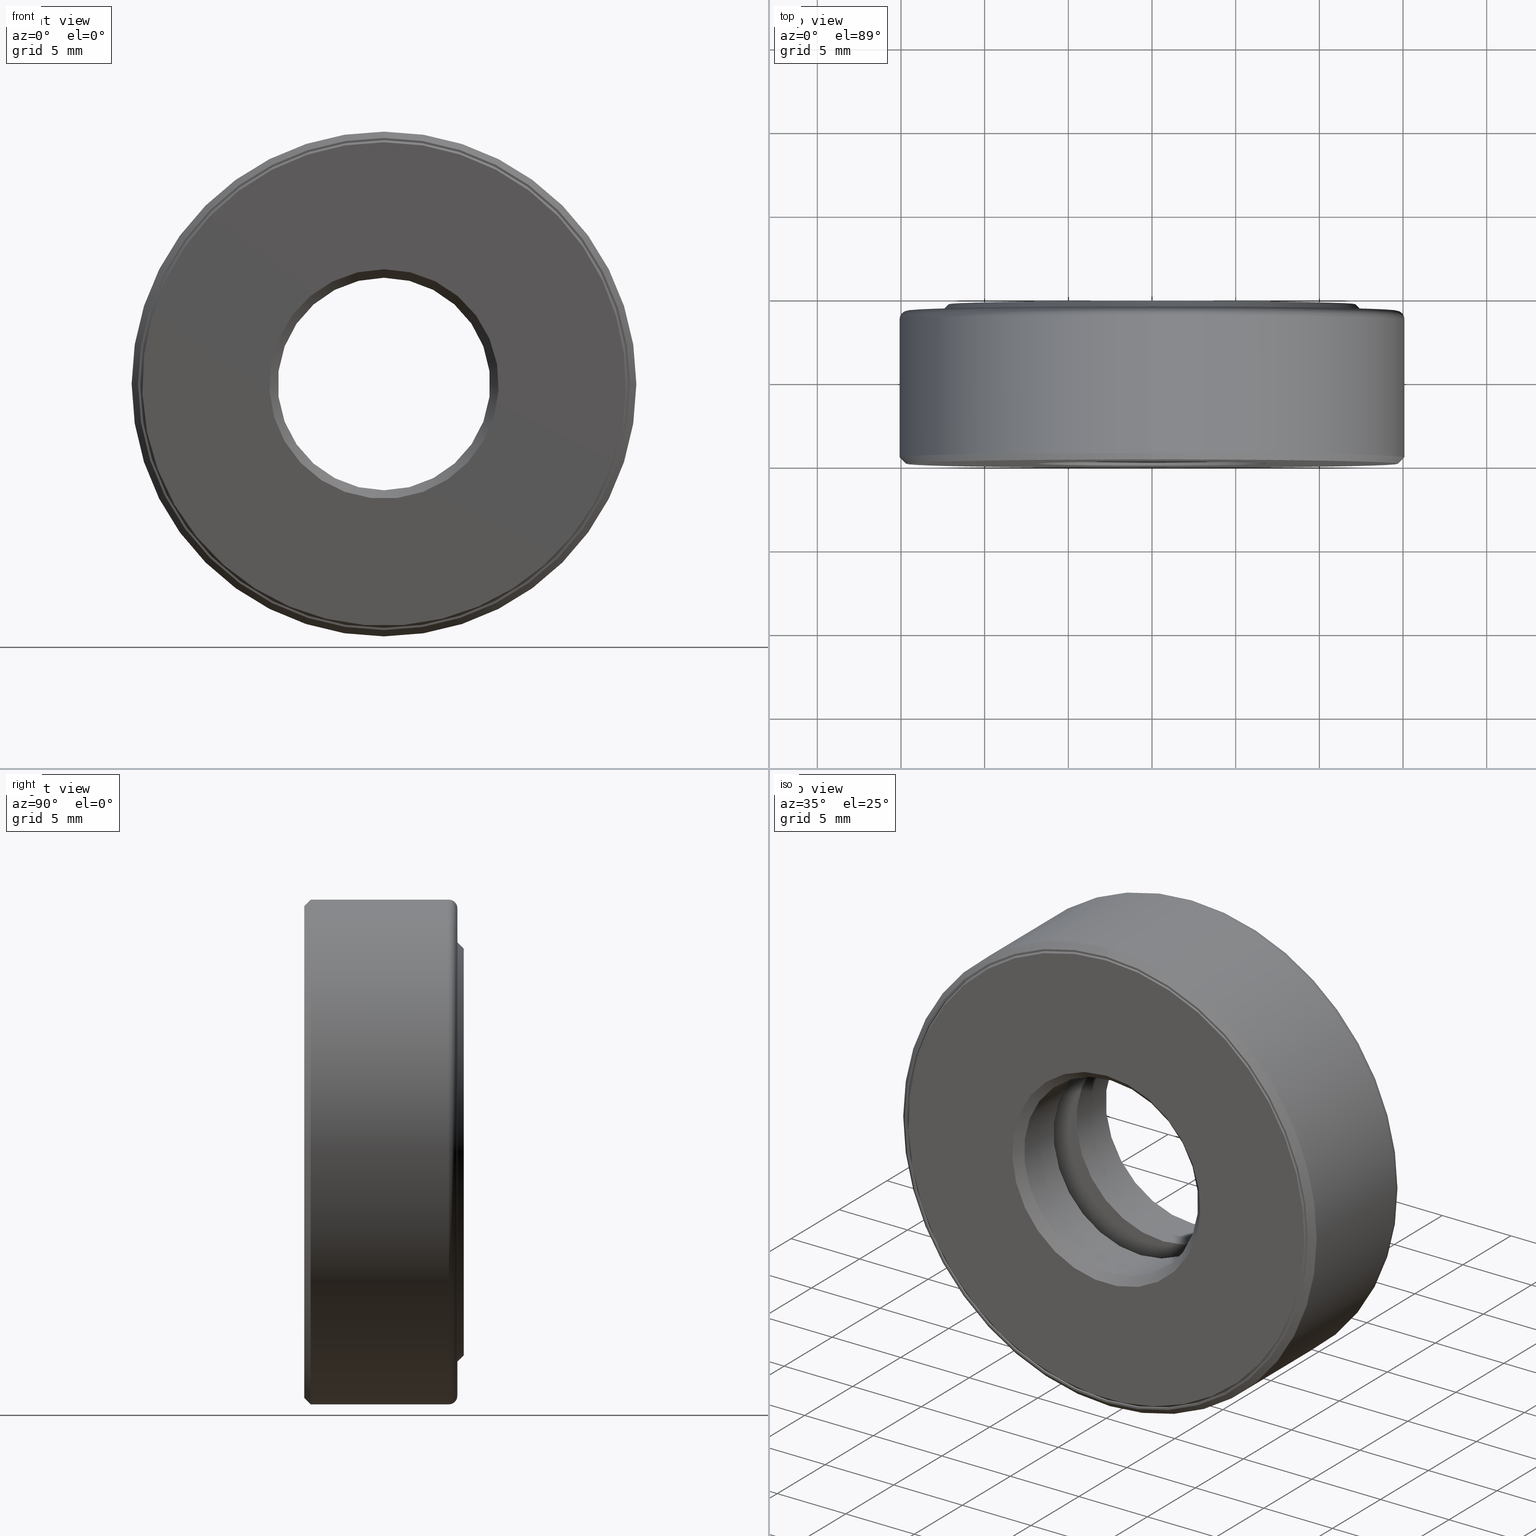
[diagram: canonical four-view strip — front | top / right | iso, engineering-drawing reading convention]
A machine part, canonical four-view strip (front | top / right | iso — engineering-drawing reading convention). The complete STEP part file that produces these views, byte-faithful:
ISO-10303-21;
HEADER;
FILE_DESCRIPTION (( 'STEP AP203' ),
    '1' );
FILE_NAME ('T-100-1-2.step',
    '2016-06-29T18:27:11',
    ( '' ),
    ( '' ),
    'SwSTEP 2.0',
    'SolidWorks 2016',
    '' );
FILE_SCHEMA (( 'CONFIG_CONTROL_DESIGN' ));
ENDSEC;

DATA;
#1 = DIRECTION ( 'NONE',  ( -0.0000000000000000000, 1.000000000000000000, -0.0000000000000000000 ) ) ;
#2 = APPROVAL_STATUS ( 'not_yet_approved' ) ;
#3 = EDGE_CURVE ( 'NONE', #433, #433, #178, .T. ) ;
#4 = ADVANCED_FACE ( 'NONE', ( #115, #412 ), #408, .T. ) ;
#5 = ORIENTED_EDGE ( 'NONE', *, *, #218, .T. ) ;
#6 = DIRECTION ( 'NONE',  ( 0.0000000000000000000, 0.0000000000000000000, 1.000000000000000000 ) ) ;
#7 = DIRECTION ( 'NONE',  ( 0.0000000000000000000, 0.0000000000000000000, 1.000000000000000000 ) ) ;
#8 = FACE_OUTER_BOUND ( 'NONE', #357, .T. ) ;
#9 = ORGANIZATION ( 'UNSPECIFIED', 'UNSPECIFIED', '' ) ;
#10 = EDGE_CURVE ( 'NONE', #118, #118, #107, .T. ) ;
#11 = SPHERICAL_SURFACE ( 'NONE', #293, 0.07812500000000000000 ) ;
#12 = ORIENTED_EDGE ( 'NONE', *, *, #446, .T. ) ;
#13 = PERSON ( 'UNSPECIFIED', 'UNSPECIFIED', 'UNSPECIFIED', ('UNSPECIFIED'), ('UNSPECIFIED'), ('UNSPECIFIED') ) ;
#14 = VERTEX_POINT ( 'NONE', #125 ) ;
#15 = CARTESIAN_POINT ( 'NONE',  ( 0.0000000000000000000, -1.707404996040164500E-017, 0.0000000000000000000 ) ) ;
#16 = EDGE_LOOP ( 'NONE', ( #564 ) ) ;
#17 = CARTESIAN_POINT ( 'NONE',  ( 0.0000000000000000000, 0.02000000000000012900, 0.2500000000000000000 ) ) ;
#18 = EDGE_CURVE ( 'NONE', #428, #428, #479, .T. ) ;
#19 = FACE_OUTER_BOUND ( 'NONE', #266, .T. ) ;
#20 = CARTESIAN_POINT ( 'NONE',  ( 0.0000000000000000000, 0.3549999999999999300, 0.0000000000000000000 ) ) ;
#21 = AXIS2_PLACEMENT_3D ( 'NONE', #193, #465, #334 ) ;
#22 = EDGE_LOOP ( 'NONE', ( #431 ) ) ;
#23 = CARTESIAN_POINT ( 'NONE',  ( 0.0000000000000000000, 0.0000000000000000000, 0.0000000000000000000 ) ) ;
#24 = APPROVAL ( #327, 'UNSPECIFIED' ) ;
#25 = EDGE_LOOP ( 'NONE', ( #54 ) ) ;
#26 = CARTESIAN_POINT ( 'NONE',  ( 0.0000000000000000000, -4.375225302352920700E-017, 0.5687499999999998700 ) ) ;
#27 = DIRECTION ( 'NONE',  ( 0.0000000000000000000, -0.0000000000000000000, -1.000000000000000000 ) ) ;
#28 = CARTESIAN_POINT ( 'NONE',  ( 0.0000000000000000000, 0.3400000000000000800, 0.5937500000000000000 ) ) ;
#29 = PERSON_AND_ORGANIZATION ( #13, #9 ) ;
#30 = PLANE ( 'NONE',  #416 ) ;
#31 = CYLINDRICAL_SURFACE ( 'NONE', #102, 0.5737499999999999800 ) ;
#32 = EDGE_LOOP ( 'NONE', ( #347 ) ) ;
#33 = CARTESIAN_POINT ( 'NONE',  ( 0.0000000000000000000, 0.1874999999999999400, 0.0000000000000000000 ) ) ;
#34 = AXIS2_PLACEMENT_3D ( 'NONE', #59, #103, #375 ) ;
#35 = CIRCLE ( 'NONE', #487, 0.5937500000000000000 ) ;
#36 = AXIS2_PLACEMENT_3D ( 'NONE', #577, #73, #208 ) ;
#37 = VERTEX_POINT ( 'NONE', #405 ) ;
#38 = CC_DESIGN_DATE_AND_TIME_ASSIGNMENT ( #113, #273, ( #497 ) ) ;
#39 = PLANE ( 'NONE',  #190 ) ;
#40 = PERSON_AND_ORGANIZATION_ROLE ( 'design_owner' ) ;
#41 = AXIS2_PLACEMENT_3D ( 'NONE', #23, #361, #532 ) ;
#42 = EDGE_LOOP ( 'NONE', ( #424 ) ) ;
#43 = ORIENTED_EDGE ( 'NONE', *, *, #523, .T. ) ;
#44 = ADVANCED_FACE ( 'NONE', ( #224, #516 ), #149, .F. ) ;
#45 = CARTESIAN_POINT ( 'NONE',  ( 0.0000000000000000000, 0.2343749999999999400, 0.0000000000000000000 ) ) ;
#46 = FACE_OUTER_BOUND ( 'NONE', #455, .T. ) ;
#47 = ADVANCED_FACE ( 'NONE', ( #498, #291 ), #467, .F. ) ;
#48 = CALENDAR_DATE ( 2016, 29, 6 ) ;
#49 = AXIS2_PLACEMENT_3D ( 'NONE', #329, #60, #7 ) ;
#50 = CC_DESIGN_PERSON_AND_ORGANIZATION_ASSIGNMENT ( #310, #555, ( #170 ) ) ;
#51 = DIMENSIONAL_EXPONENTS ( 1.000000000000000000, 0.0000000000000000000, 0.0000000000000000000, 0.0000000000000000000, 0.0000000000000000000, 0.0000000000000000000, 0.0000000000000000000 ) ;
#52 = MECHANICAL_CONTEXT ( 'NONE', #421, 'mechanical' ) ;
#53 = CIRCLE ( 'NONE', #93, 0.5737499999999999800 ) ;
#54 = ORIENTED_EDGE ( 'NONE', *, *, #594, .T. ) ;
#55 = DIRECTION ( 'NONE',  ( 0.0000000000000000000, 0.0000000000000000000, 1.000000000000000000 ) ) ;
#56 = ADVANCED_FACE ( 'NONE', ( ), #11, .T. ) ;
#57 = EDGE_CURVE ( 'NONE', #350, #350, #75, .T. ) ;
#58 = FACE_OUTER_BOUND ( 'NONE', #42, .T. ) ;
#59 = CARTESIAN_POINT ( 'NONE',  ( 1.699042106514539300E-015, 0.1874999999999999400, 0.4866249999999999200 ) ) ;
#60 = DIRECTION ( 'NONE',  ( -0.0000000000000000000, 1.000000000000000000, -0.0000000000000000000 ) ) ;
#61 = EDGE_LOOP ( 'NONE', ( #179 ) ) ;
#62 = ORIENTED_EDGE ( 'NONE', *, *, #561, .T. ) ;
#63 = VERTEX_POINT ( 'NONE', #300 ) ;
#64 = COORDINATED_UNIVERSAL_TIME_OFFSET ( 5, 0, .BEHIND. ) ;
#65 = AXIS2_PLACEMENT_3D ( 'NONE', #393, #404, #463 ) ;
#66 = FACE_BOUND ( 'NONE', #521, .T. ) ;
#67 = EDGE_LOOP ( 'NONE', ( #304 ) ) ;
#68 = AXIS2_PLACEMENT_3D ( 'NONE', #33, #452, #173 ) ;
#69 = DIRECTION ( 'NONE',  ( -0.0000000000000000000, 1.000000000000000000, -0.0000000000000000000 ) ) ;
#70 = DIRECTION ( 'NONE',  ( 0.0000000000000000000, -1.000000000000000000, 0.0000000000000000000 ) ) ;
#71 = FACE_OUTER_BOUND ( 'NONE', #392, .T. ) ;
#72 = FACE_OUTER_BOUND ( 'NONE', #77, .T. ) ;
#73 = DIRECTION ( 'NONE',  ( -0.0000000000000000000, 1.000000000000000000, -0.0000000000000000000 ) ) ;
#74 = PRODUCT_DEFINITION ( 'UNKNOWN', '', #170, #91 ) ;
#75 = CIRCLE ( 'NONE', #504, 0.5667499999999998600 ) ;
#76 = CARTESIAN_POINT ( 'NONE',  ( 0.0000000000000000000, 0.3750000000000000600, 0.4787499999999997900 ) ) ;
#77 = EDGE_LOOP ( 'NONE', ( #89 ) ) ;
#78 = CARTESIAN_POINT ( 'NONE',  ( 0.0000000000000000000, 0.1406250000000000300, 0.5737499999999999800 ) ) ;
#79 = DIRECTION ( 'NONE',  ( -0.0000000000000000000, 1.000000000000000000, -0.0000000000000000000 ) ) ;
#80 = FACE_OUTER_BOUND ( 'NONE', #355, .T. ) ;
#81 = COORDINATED_UNIVERSAL_TIME_OFFSET ( 5, 0, .BEHIND. ) ;
#82 = CARTESIAN_POINT ( 'NONE',  ( 0.0000000000000000000, 0.3599999999999999900, 0.0000000000000000000 ) ) ;
#83 = ORIENTED_EDGE ( 'NONE', *, *, #206, .F. ) ;
#84 = CARTESIAN_POINT ( 'NONE',  ( 0.0000000000000000000, -4.481938114605432000E-017, 0.0000000000000000000 ) ) ;
#85 = CIRCLE ( 'NONE', #568, 0.2500000000000000000 ) ;
#86 = CIRCLE ( 'NONE', #434, 0.5667499999999998600 ) ;
#87 = CARTESIAN_POINT ( 'NONE',  ( -9.750409241346167200E-017, 0.1406250000000000300, 0.0000000000000000000 ) ) ;
#88 = EDGE_LOOP ( 'NONE', ( #120 ) ) ;
#89 = ORIENTED_EDGE ( 'NONE', *, *, #365, .T. ) ;
#90 = DIRECTION ( 'NONE',  ( 0.0000000000000000000, 0.0000000000000000000, 1.000000000000000000 ) ) ;
#91 = DESIGN_CONTEXT ( 'detailed design', #457, 'design' ) ;
#92 = DIRECTION ( 'NONE',  ( -0.0000000000000000000, 1.000000000000000000, -0.0000000000000000000 ) ) ;
#93 = AXIS2_PLACEMENT_3D ( 'NONE', #501, #98, #133 ) ;
#94 = FACE_BOUND ( 'NONE', #605, .T. ) ;
#95 = APPROVAL_ROLE ( '' ) ;
#96 = CC_DESIGN_DATE_AND_TIME_ASSIGNMENT ( #200, #550, ( #74 ) ) ;
#97 = ADVANCED_FACE ( 'NONE', ( #275, #385 ), #579, .T. ) ;
#98 = DIRECTION ( 'NONE',  ( -0.0000000000000000000, 1.000000000000000000, -0.0000000000000000000 ) ) ;
#99 = TOROIDAL_SURFACE ( 'NONE', #68, 0.4866249999999999200, 0.07812500000000000000 ) ;
#100 = CLOSED_SHELL ( 'NONE', ( #377 ) ) ;
#101 = ADVANCED_FACE ( 'NONE', ( #235, #111 ), #30, .F. ) ;
#102 = AXIS2_PLACEMENT_3D ( 'NONE', #444, #79, #129 ) ;
#103 = DIRECTION ( 'NONE',  ( -1.000000000000000000, 0.0000000000000000000, 3.491481338843134500E-015 ) ) ;
#104 = CIRCLE ( 'NONE', #511, 0.5137499999999999300 ) ;
#105 = CIRCLE ( 'NONE', #495, 0.4241249999999998100 ) ;
#106 = DIRECTION ( 'NONE',  ( 0.0000000000000000000, 0.0000000000000000000, 1.000000000000000000 ) ) ;
#107 = CIRCLE ( 'NONE', #388, 0.4787499999999997900 ) ;
#108 = AXIS2_PLACEMENT_3D ( 'NONE', #189, #143, #331 ) ;
#109 = CARTESIAN_POINT ( 'NONE',  ( 0.0000000000000000000, 0.0000000000000000000, 0.0000000000000000000 ) ) ;
#110 = VERTEX_POINT ( 'NONE', #402 ) ;
#111 = FACE_OUTER_BOUND ( 'NONE', #517, .T. ) ;
#112 = EDGE_LOOP ( 'NONE', ( #440 ) ) ;
#113 = DATE_AND_TIME ( #502, #345 ) ;
#114 = CARTESIAN_POINT ( 'NONE',  ( 0.0000000000000000000, -1.707404996040164500E-017, 0.2699999999999999600 ) ) ;
#115 = FACE_BOUND ( 'NONE', #137, .T. ) ;
#116 = CARTESIAN_POINT ( 'NONE',  ( 0.0000000000000000000, 0.3400000000000000800, 0.0000000000000000000 ) ) ;
#117 = CARTESIAN_POINT ( 'NONE',  ( 0.0000000000000000000, 0.1406250000000000300, 0.5491249999999999700 ) ) ;
#118 = VERTEX_POINT ( 'NONE', #76 ) ;
#119 = DIRECTION ( 'NONE',  ( 0.0000000000000000000, 0.0000000000000000000, 1.000000000000000000 ) ) ;
#120 = ORIENTED_EDGE ( 'NONE', *, *, #10, .F. ) ;
#121 = ADVANCED_FACE ( 'NONE', ( #460, #342 ), #153, .T. ) ;
#122 = DIRECTION ( 'NONE',  ( -0.0000000000000000000, 1.000000000000000000, -0.0000000000000000000 ) ) ;
#123 = ORIENTED_EDGE ( 'NONE', *, *, #353, .T. ) ;
#124 = DIRECTION ( 'NONE',  ( 0.0000000000000000000, -1.000000000000000000, 0.0000000000000000000 ) ) ;
#125 = CARTESIAN_POINT ( 'NONE',  ( 0.0000000000000000000, 0.3399999999999999700, 0.5137499999999999300 ) ) ;
#126 = AXIS2_PLACEMENT_3D ( 'NONE', #225, #131, #232 ) ;
#127 = DIRECTION ( 'NONE',  ( -1.000000000000000000, 0.0000000000000000000, 6.982962677686269100E-015 ) ) ;
#128 = ADVANCED_FACE ( 'NONE', ( #406, #295 ), #31, .F. ) ;
#129 = DIRECTION ( 'NONE',  ( 0.0000000000000000000, 0.0000000000000000000, 1.000000000000000000 ) ) ;
#130 = CLOSED_SHELL ( 'NONE', ( #56 ) ) ;
#131 = DIRECTION ( 'NONE',  ( -0.0000000000000000000, 1.000000000000000000, -0.0000000000000000000 ) ) ;
#132 = AXIS2_PLACEMENT_3D ( 'NONE', #163, #354, #587 ) ;
#133 = DIRECTION ( 'NONE',  ( 0.0000000000000000000, 0.0000000000000000000, 1.000000000000000000 ) ) ;
#134 = FACE_OUTER_BOUND ( 'NONE', #484, .T. ) ;
#135 = APPROVAL_DATE_TIME ( #239, #341 ) ;
#136 = APPLICATION_PROTOCOL_DEFINITION ( 'international standard', 'config_control_design', 1994, #457 ) ;
#137 = EDGE_LOOP ( 'NONE', ( #43 ) ) ;
#138 = EDGE_LOOP ( 'NONE', ( #589 ) ) ;
#139 = ADVANCED_FACE ( 'NONE', ( #572, #506 ), #99, .F. ) ;
#140 = MANIFOLD_SOLID_BREP ( 'Revolve2[1]', #164 ) ;
#141 = ADVANCED_FACE ( 'NONE', ( #423, #435 ), #39, .F. ) ;
#142 = CARTESIAN_POINT ( 'NONE',  ( 0.0000000000000000000, -4.375225302352920700E-017, 0.0000000000000000000 ) ) ;
#143 = DIRECTION ( 'NONE',  ( -0.0000000000000000000, 1.000000000000000000, 0.0000000000000000000 ) ) ;
#144 = AXIS2_PLACEMENT_3D ( 'NONE', #562, #246, #505 ) ;
#145 = ORIENTED_EDGE ( 'NONE', *, *, #594, .F. ) ;
#146 = DIRECTION ( 'NONE',  ( -0.0000000000000000000, 1.000000000000000000, -0.0000000000000000000 ) ) ;
#147 = DIRECTION ( 'NONE',  ( 0.0000000000000000000, 0.0000000000000000000, 1.000000000000000000 ) ) ;
#148 = CIRCLE ( 'NONE', #36, 0.2500000000000000600 ) ;
#149 = CONICAL_SURFACE ( 'NONE', #301, 0.2500000000000000000, 0.7853981633974445000 ) ;
#150 = ORIENTED_EDGE ( 'NONE', *, *, #523, .F. ) ;
#151 = PERSON_AND_ORGANIZATION ( #13, #9 ) ;
#152 = PRODUCT ( 'T-100-1-2', 'T-100-1-2', '', ( #52 ) ) ;
#153 = CONICAL_SURFACE ( 'NONE', #537, 0.4787499999999997900, 0.7853981633974498300 ) ;
#154 = EDGE_CURVE ( 'NONE', #199, #199, #311, .T. ) ;
#155 = ORIENTED_EDGE ( 'NONE', *, *, #378, .F. ) ;
#156 = DIRECTION ( 'NONE',  ( 0.0000000000000000000, 0.0000000000000000000, 1.000000000000000000 ) ) ;
#157 = CYLINDRICAL_SURFACE ( 'NONE', #540, 0.5667499999999998600 ) ;
#158 = AXIS2_PLACEMENT_3D ( 'NONE', #318, #280, #462 ) ;
#159 = VERTEX_POINT ( 'NONE', #490 ) ;
#160 = DIRECTION ( 'NONE',  ( 0.0000000000000000000, 0.0000000000000000000, 1.000000000000000000 ) ) ;
#161 = AXIS2_PLACEMENT_3D ( 'NONE', #20, #351, #213 ) ;
#162 = CC_DESIGN_PERSON_AND_ORGANIZATION_ASSIGNMENT ( #360, #326, ( #497 ) ) ;
#163 = CARTESIAN_POINT ( 'NONE',  ( 0.0000000000000000000, 0.0000000000000000000, 0.0000000000000000000 ) ) ;
#164 = CLOSED_SHELL ( 'NONE', ( #139, #212, #586, #237, #330, #101, #510, #459, #97, #425, #128, #420, #141, #44, #557, #552 ) ) ;
#165 = DIRECTION ( 'NONE',  ( 0.0000000000000000000, 0.0000000000000000000, 1.000000000000000000 ) ) ;
#166 = MANIFOLD_SOLID_BREP ( 'BALLS[2]', #130 ) ;
#167 = VERTEX_POINT ( 'NONE', #349 ) ;
#168 = APPROVAL_PERSON_ORGANIZATION ( #272, #24, #95 ) ;
#169 = AXIS2_PLACEMENT_3D ( 'NONE', #556, #283, #468 ) ;
#170 = PRODUCT_DEFINITION_FORMATION_WITH_SPECIFIED_SOURCE ( 'ANY', '', #152, .NOT_KNOWN. ) ;
#171 = CIRCLE ( 'NONE', #315, 0.4241249999999998100 ) ;
#172 = DIRECTION ( 'NONE',  ( 0.0000000000000000000, 0.0000000000000000000, -1.000000000000000000 ) ) ;
#173 = DIRECTION ( 'NONE',  ( 0.0000000000000000000, 0.0000000000000000000, 1.000000000000000000 ) ) ;
#174 = CIRCLE ( 'NONE', #384, 0.2699999999999999600 ) ;
#175 = FACE_OUTER_BOUND ( 'NONE', #461, .T. ) ;
#176 = EDGE_CURVE ( 'NONE', #110, #110, #171, .T. ) ;
#177 = DIRECTION ( 'NONE',  ( 0.0000000000000000000, 0.0000000000000000000, 1.000000000000000000 ) ) ;
#178 = CIRCLE ( 'NONE', #257, 0.5687499999999998700 ) ;
#179 = ORIENTED_EDGE ( 'NONE', *, *, #231, .F. ) ;
#180 = DIRECTION ( 'NONE',  ( 0.0000000000000000000, 0.0000000000000000000, 1.000000000000000000 ) ) ;
#181 = AXIS2_PLACEMENT_3D ( 'NONE', #547, #541, #323 ) ;
#182 = CC_DESIGN_APPROVAL ( #290, ( #74 ) ) ;
#183 = PLANE ( 'NONE',  #520 ) ;
#184 = VERTEX_POINT ( 'NONE', #480 ) ;
#185 = LOCAL_TIME ( 14, 27, 11.00000000000000000, #81 ) ;
#186 = DIRECTION ( 'NONE',  ( -0.0000000000000000000, 1.000000000000000000, -0.0000000000000000000 ) ) ;
#187 = CIRCLE ( 'NONE', #250, 0.5737499999999999800 ) ;
#188 = EDGE_LOOP ( 'NONE', ( #414 ) ) ;
#189 = CARTESIAN_POINT ( 'NONE',  ( 0.0000000000000000000, 0.3750000000000000600, 0.0000000000000000000 ) ) ;
#190 = AXIS2_PLACEMENT_3D ( 'NONE', #409, #368, #545 ) ;
#191 = FACE_OUTER_BOUND ( 'NONE', #25, .T. ) ;
#192 = SPHERICAL_SURFACE ( 'NONE', #181, 0.07812500000000000000 ) ;
#193 = CARTESIAN_POINT ( 'NONE',  ( -3.242505915097589300E-034, -4.483605502296877000E-017, 0.0000000000000000000 ) ) ;
#194 = CARTESIAN_POINT ( 'NONE',  ( 0.0000000000000000000, 0.02000000000000012900, 0.0000000000000000000 ) ) ;
#195 = ORIENTED_EDGE ( 'NONE', *, *, #3, .T. ) ;
#196 = CC_DESIGN_SECURITY_CLASSIFICATION ( #497, ( #170 ) ) ;
#197 = ORIENTED_EDGE ( 'NONE', *, *, #477, .T. ) ;
#198 = EDGE_CURVE ( 'NONE', #63, #63, #187, .T. ) ;
#199 = VERTEX_POINT ( 'NONE', #578 ) ;
#200 = DATE_AND_TIME ( #282, #482 ) ;
#201 = EDGE_LOOP ( 'NONE', ( #604 ) ) ;
#202 = EDGE_LOOP ( 'NONE', ( #499 ) ) ;
#203 = CC_DESIGN_PERSON_AND_ORGANIZATION_ASSIGNMENT ( #151, #603, ( #170 ) ) ;
#204 = CARTESIAN_POINT ( 'NONE',  ( 0.0000000000000000000, 0.3399999999999999700, 0.0000000000000000000 ) ) ;
#205 = CYLINDRICAL_SURFACE ( 'NONE', #567, 0.5937500000000000000 ) ;
#206 = EDGE_CURVE ( 'NONE', #316, #316, #53, .T. ) ;
#207 = ORIENTED_EDGE ( 'NONE', *, *, #245, .T. ) ;
#208 = DIRECTION ( 'NONE',  ( 0.0000000000000000000, 0.0000000000000000000, 1.000000000000000000 ) ) ;
#209 = ORIENTED_EDGE ( 'NONE', *, *, #533, .F. ) ;
#210 = CARTESIAN_POINT ( 'NONE',  ( -2.757832908176868700E-017, 0.1406250000000000800, 0.0000000000000000000 ) ) ;
#211 = FACE_BOUND ( 'NONE', #398, .T. ) ;
#212 = ADVANCED_FACE ( 'NONE', ( #66, #285 ), #183, .F. ) ;
#213 = DIRECTION ( 'NONE',  ( 0.0000000000000000000, 0.0000000000000000000, 1.000000000000000000 ) ) ;
#214 = CARTESIAN_POINT ( 'NONE',  ( 0.0000000000000000000, 0.1406250000000000300, 0.0000000000000000000 ) ) ;
#215 = ORIENTED_EDGE ( 'NONE', *, *, #581, .F. ) ;
#216 = DIRECTION ( 'NONE',  ( -0.0000000000000000000, 1.000000000000000000, -0.0000000000000000000 ) ) ;
#217 = ORIENTED_EDGE ( 'NONE', *, *, #397, .F. ) ;
#218 = EDGE_CURVE ( 'NONE', #443, #443, #553, .T. ) ;
#219 = CARTESIAN_POINT ( 'NONE',  ( 0.4866249999999999200, 0.1874999999999999400, -3.398084213029078600E-015 ) ) ;
#220 = CYLINDRICAL_SURFACE ( 'NONE', #132, 0.2500000000000000000 ) ;
#221 = FACE_OUTER_BOUND ( 'NONE', #201, .T. ) ;
#222 = DIRECTION ( 'NONE',  ( 0.0000000000000000000, 0.0000000000000000000, 1.000000000000000000 ) ) ;
#223 = MANIFOLD_SOLID_BREP ( 'Revolve3', #100 ) ;
#224 = FACE_OUTER_BOUND ( 'NONE', #22, .T. ) ;
#225 = CARTESIAN_POINT ( 'NONE',  ( 0.0000000000000000000, 0.004999999999999972300, 0.0000000000000000000 ) ) ;
#226 = PRODUCT_RELATED_PRODUCT_CATEGORY ( 'detail', '', ( #152 ) ) ;
#227 = PLANE ( 'NONE',  #470 ) ;
#228 = CIRCLE ( 'NONE', #528, 0.5737499999999999800 ) ;
#229 = APPROVAL_STATUS ( 'not_yet_approved' ) ;
#230 = CALENDAR_DATE ( 2016, 29, 6 ) ;
#231 = EDGE_CURVE ( 'NONE', #184, #184, #560, .T. ) ;
#232 = DIRECTION ( 'NONE',  ( 0.0000000000000000000, 0.0000000000000000000, 1.000000000000000000 ) ) ;
#233 = ADVANCED_FACE ( 'NONE', ( #221, #451 ), #299, .F. ) ;
#234 = CARTESIAN_POINT ( 'NONE',  ( 0.0000000000000000000, 0.3399999999999999700, 0.0000000000000000000 ) ) ;
#235 = FACE_BOUND ( 'NONE', #260, .T. ) ;
#236 = ORIENTED_EDGE ( 'NONE', *, *, #514, .T. ) ;
#237 = ADVANCED_FACE ( 'NONE', ( #438, #317 ), #227, .F. ) ;
#238 =( NAMED_UNIT ( * ) SI_UNIT ( $, .STERADIAN. ) SOLID_ANGLE_UNIT ( ) );
#239 = DATE_AND_TIME ( #230, #256 ) ;
#240 = DIRECTION ( 'NONE',  ( 0.0000000000000000000, 0.0000000000000000000, 1.000000000000000000 ) ) ;
#241 = ADVANCED_FACE ( 'NONE', ( ), #192, .T. ) ;
#242 =( GEOMETRIC_REPRESENTATION_CONTEXT ( 3 ) GLOBAL_UNCERTAINTY_ASSIGNED_CONTEXT ( ( #418 ) ) GLOBAL_UNIT_ASSIGNED_CONTEXT ( ( #542, #374, #238 ) ) REPRESENTATION_CONTEXT ( 'NONE', 'WORKASPACE' ) );
#243 = EDGE_LOOP ( 'NONE', ( #591 ) ) ;
#244 = CARTESIAN_POINT ( 'NONE',  ( 0.0000000000000000000, 0.3599999999999999900, 0.0000000000000000000 ) ) ;
#245 = EDGE_CURVE ( 'NONE', #471, #471, #105, .T. ) ;
#246 = DIRECTION ( 'NONE',  ( -0.0000000000000000000, 1.000000000000000000, -0.0000000000000000000 ) ) ;
#247 = FACE_OUTER_BOUND ( 'NONE', #475, .T. ) ;
#248 = ORIENTED_EDGE ( 'NONE', *, *, #18, .F. ) ;
#249 = EDGE_LOOP ( 'NONE', ( #209 ) ) ;
#250 = AXIS2_PLACEMENT_3D ( 'NONE', #234, #269, #180 ) ;
#251 = CARTESIAN_POINT ( 'NONE',  ( 0.0000000000000000000, -4.481938114605432000E-017, 0.5787499999999999900 ) ) ;
#252 = CLOSED_SHELL ( 'NONE', ( #606, #233, #4, #47, #598, #503, #121, #469 ) ) ;
#253 = CARTESIAN_POINT ( 'NONE',  ( 0.0000000000000000000, 0.3750000000000000600, 0.0000000000000000000 ) ) ;
#254 = DIRECTION ( 'NONE',  ( -0.0000000000000000000, 1.000000000000000000, -0.0000000000000000000 ) ) ;
#255 = CIRCLE ( 'NONE', #601, 0.2700000000000000200 ) ;
#256 = LOCAL_TIME ( 14, 27, 11.00000000000000000, #389 ) ;
#257 = AXIS2_PLACEMENT_3D ( 'NONE', #358, #216, #530 ) ;
#258 = ORIENTED_EDGE ( 'NONE', *, *, #574, .F. ) ;
#259 = CARTESIAN_POINT ( 'NONE',  ( 0.0000000000000000000, 0.2343749999999999400, 0.5491249999999999700 ) ) ;
#260 = EDGE_LOOP ( 'NONE', ( #474 ) ) ;
#261 = CARTESIAN_POINT ( 'NONE',  ( 0.0000000000000000000, 0.2343749999999999400, 0.2500000000000000000 ) ) ;
#262 = DIRECTION ( 'NONE',  ( 0.0000000000000000000, 0.0000000000000000000, -1.000000000000000000 ) ) ;
#263 = CARTESIAN_POINT ( 'NONE',  ( 0.0000000000000000000, 0.02000000000000012900, 0.0000000000000000000 ) ) ;
#264 = DIRECTION ( 'NONE',  ( -0.0000000000000000000, 1.000000000000000000, -0.0000000000000000000 ) ) ;
#265 = AXIS2_PLACEMENT_3D ( 'NONE', #454, #92, #274 ) ;
#266 = EDGE_LOOP ( 'NONE', ( #145 ) ) ;
#267 = AXIS2_PLACEMENT_3D ( 'NONE', #558, #380, #288 ) ;
#268 = AXIS2_PLACEMENT_3D ( 'NONE', #442, #346, #580 ) ;
#269 = DIRECTION ( 'NONE',  ( -0.0000000000000000000, 1.000000000000000000, -0.0000000000000000000 ) ) ;
#270 = DIRECTION ( 'NONE',  ( 0.0000000000000000000, -0.0000000000000000000, -1.000000000000000000 ) ) ;
#271 = FACE_OUTER_BOUND ( 'NONE', #112, .T. ) ;
#272 = PERSON_AND_ORGANIZATION ( #13, #9 ) ;
#273 = DATE_TIME_ROLE ( 'classification_date' ) ;
#274 = DIRECTION ( 'NONE',  ( 0.0000000000000000000, 0.0000000000000000000, 1.000000000000000000 ) ) ;
#275 = FACE_OUTER_BOUND ( 'NONE', #61, .T. ) ;
#276 = EDGE_LOOP ( 'NONE', ( #150 ) ) ;
#277 = DIRECTION ( 'NONE',  ( -0.0000000000000000000, 1.000000000000000000, 0.0000000000000000000 ) ) ;
#278 = MANIFOLD_SOLID_BREP ( 'BALLS[1]', #485 ) ;
#279 = AXIS2_PLACEMENT_3D ( 'NONE', #595, #322, #415 ) ;
#280 = DIRECTION ( 'NONE',  ( -0.0000000000000000000, 1.000000000000000000, -0.0000000000000000000 ) ) ;
#281 = VERTEX_POINT ( 'NONE', #261 ) ;
#282 = CALENDAR_DATE ( 2016, 29, 6 ) ;
#283 = DIRECTION ( 'NONE',  ( -0.0000000000000000000, 1.000000000000000000, -0.0000000000000000000 ) ) ;
#284 = SECURITY_CLASSIFICATION_LEVEL ( 'unclassified' ) ;
#285 = FACE_OUTER_BOUND ( 'NONE', #243, .T. ) ;
#286 = EDGE_LOOP ( 'NONE', ( #195 ) ) ;
#287 = DIRECTION ( 'NONE',  ( 0.0000000000000000000, 0.0000000000000000000, 1.000000000000000000 ) ) ;
#288 = DIRECTION ( 'NONE',  ( 1.000000000000000000, 0.0000000000000000000, 0.0000000000000000000 ) ) ;
#289 = FACE_OUTER_BOUND ( 'NONE', #138, .T. ) ;
#290 = APPROVAL ( #229, 'UNSPECIFIED' ) ;
#291 = FACE_OUTER_BOUND ( 'NONE', #276, .T. ) ;
#292 = EDGE_LOOP ( 'NONE', ( #554 ) ) ;
#293 = AXIS2_PLACEMENT_3D ( 'NONE', #219, #314, #127 ) ;
#294 = COORDINATED_UNIVERSAL_TIME_OFFSET ( 5, 0, .BEHIND. ) ;
#295 = FACE_OUTER_BOUND ( 'NONE', #188, .T. ) ;
#296 = CLOSED_SHELL ( 'NONE', ( #241 ) ) ;
#297 = CC_DESIGN_APPROVAL ( #24, ( #170 ) ) ;
#298 = VERTEX_POINT ( 'NONE', #114 ) ;
#299 = TOROIDAL_SURFACE ( 'NONE', #158, 0.4866249999999999200, 0.07812500000000006900 ) ;
#300 = CARTESIAN_POINT ( 'NONE',  ( 0.0000000000000000000, 0.3399999999999999700, 0.5737499999999999800 ) ) ;
#301 = AXIS2_PLACEMENT_3D ( 'NONE', #263, #124, #262 ) ;
#302 = CARTESIAN_POINT ( 'NONE',  ( 0.0000000000000000000, 0.1406250000000000600, 0.4241249999999998100 ) ) ;
#303 = EDGE_LOOP ( 'NONE', ( #62 ) ) ;
#304 = ORIENTED_EDGE ( 'NONE', *, *, #154, .F. ) ;
#305 = PLANE ( 'NONE',  #268 ) ;
#306 = DIRECTION ( 'NONE',  ( -0.0000000000000000000, 1.000000000000000000, -0.0000000000000000000 ) ) ;
#307 = DIRECTION ( 'NONE',  ( -0.0000000000000000000, 1.000000000000000000, -0.0000000000000000000 ) ) ;
#308 = VERTEX_POINT ( 'NONE', #399 ) ;
#309 = DIRECTION ( 'NONE',  ( 0.0000000000000000000, 0.0000000000000000000, 1.000000000000000000 ) ) ;
#310 = PERSON_AND_ORGANIZATION ( #13, #9 ) ;
#311 = CIRCLE ( 'NONE', #126, 0.5737499999999999800 ) ;
#312 = CARTESIAN_POINT ( 'NONE',  ( 0.0000000000000000000, 0.3549999999999999300, 0.2500000000000000600 ) ) ;
#313 = ORIENTED_EDGE ( 'NONE', *, *, #176, .F. ) ;
#314 = DIRECTION ( 'NONE',  ( 6.982962677686269100E-015, -0.0000000000000000000, 1.000000000000000000 ) ) ;
#315 = AXIS2_PLACEMENT_3D ( 'NONE', #45, #492, #90 ) ;
#316 = VERTEX_POINT ( 'NONE', #525 ) ;
#317 = FACE_BOUND ( 'NONE', #526, .T. ) ;
#318 = CARTESIAN_POINT ( 'NONE',  ( 0.0000000000000000000, 0.1874999999999999400, 0.0000000000000000000 ) ) ;
#319 = ORIENTED_EDGE ( 'NONE', *, *, #574, .T. ) ;
#320 = ORIENTED_EDGE ( 'NONE', *, *, #3, .F. ) ;
#321 = AXIS2_PLACEMENT_3D ( 'NONE', #508, #513, #240 ) ;
#322 = DIRECTION ( 'NONE',  ( -0.0000000000000000000, 1.000000000000000000, -0.0000000000000000000 ) ) ;
#323 = DIRECTION ( 'NONE',  ( 1.047444401652940000E-014, 0.0000000000000000000, 1.000000000000000000 ) ) ;
#324 = TOROIDAL_SURFACE ( 'NONE', #321, 0.5737499999999999800, 0.01999999999999999000 ) ;
#325 = DATE_AND_TIME ( #519, #445 ) ;
#326 = PERSON_AND_ORGANIZATION_ROLE ( 'classification_officer' ) ;
#327 = APPROVAL_STATUS ( 'not_yet_approved' ) ;
#328 = EDGE_LOOP ( 'NONE', ( #5 ) ) ;
#329 = CARTESIAN_POINT ( 'NONE',  ( 0.0000000000000000000, 0.3599999999999999900, 0.0000000000000000000 ) ) ;
#330 = ADVANCED_FACE ( 'NONE', ( #175, #72 ), #333, .F. ) ;
#331 = DIRECTION ( 'NONE',  ( 0.0000000000000000000, 0.0000000000000000000, 1.000000000000000000 ) ) ;
#332 = VERTEX_POINT ( 'NONE', #17 ) ;
#333 = CYLINDRICAL_SURFACE ( 'NONE', #279, 0.5137499999999999300 ) ;
#334 = DIRECTION ( 'NONE',  ( 0.0000000000000000000, 0.0000000000000000000, 1.000000000000000000 ) ) ;
#335 = DIRECTION ( 'NONE',  ( -0.0000000000000000000, 1.000000000000000000, -0.0000000000000000000 ) ) ;
#336 = EDGE_LOOP ( 'NONE', ( #573 ) ) ;
#337 = AXIS2_PLACEMENT_3D ( 'NONE', #84, #264, #309 ) ;
#338 = CONICAL_SURFACE ( 'NONE', #590, 0.5687499999999998700, 0.7853981633974549400 ) ;
#339 = VERTEX_POINT ( 'NONE', #28 ) ;
#340 = PLANE ( 'NONE',  #403 ) ;
#341 = APPROVAL ( #2, 'UNSPECIFIED' ) ;
#342 = FACE_BOUND ( 'NONE', #88, .T. ) ;
#343 = ORIENTED_EDGE ( 'NONE', *, *, #57, .T. ) ;
#344 = SHAPE_DEFINITION_REPRESENTATION ( #563, #476 ) ;
#345 = LOCAL_TIME ( 14, 27, 11.00000000000000000, #294 ) ;
#346 = DIRECTION ( 'NONE',  ( 0.0000000000000000000, -1.000000000000000000, 0.0000000000000000000 ) ) ;
#347 = ORIENTED_EDGE ( 'NONE', *, *, #378, .T. ) ;
#348 = DIRECTION ( 'NONE',  ( 0.0000000000000000000, 0.0000000000000000000, 1.000000000000000000 ) ) ;
#349 = CARTESIAN_POINT ( 'NONE',  ( 0.0000000000000000000, 0.3599999999999999900, 0.5137499999999999300 ) ) ;
#350 = VERTEX_POINT ( 'NONE', #478 ) ;
#351 = DIRECTION ( 'NONE',  ( -0.0000000000000000000, 1.000000000000000000, -0.0000000000000000000 ) ) ;
#352 = CARTESIAN_POINT ( 'NONE',  ( 0.0000000000000000000, 0.3750000000000000600, 0.0000000000000000000 ) ) ;
#353 = EDGE_CURVE ( 'NONE', #534, #534, #429, .T. ) ;
#354 = DIRECTION ( 'NONE',  ( -0.0000000000000000000, 1.000000000000000000, -0.0000000000000000000 ) ) ;
#355 = EDGE_LOOP ( 'NONE', ( #432 ) ) ;
#356 = DIRECTION ( 'NONE',  ( -0.0000000000000000000, 1.000000000000000000, -0.0000000000000000000 ) ) ;
#357 = EDGE_LOOP ( 'NONE', ( #155 ) ) ;
#358 = CARTESIAN_POINT ( 'NONE',  ( 0.0000000000000000000, -4.375225302352920700E-017, 0.0000000000000000000 ) ) ;
#359 = DIRECTION ( 'NONE',  ( 0.0000000000000000000, 0.0000000000000000000, 1.000000000000000000 ) ) ;
#360 = PERSON_AND_ORGANIZATION ( #13, #9 ) ;
#361 = DIRECTION ( 'NONE',  ( -0.0000000000000000000, 1.000000000000000000, -0.0000000000000000000 ) ) ;
#362 = ORIENTED_EDGE ( 'NONE', *, *, #245, .F. ) ;
#363 = CC_DESIGN_PERSON_AND_ORGANIZATION_ASSIGNMENT ( #472, #40, ( #152 ) ) ;
#364 = DIRECTION ( 'NONE',  ( -0.0000000000000000000, 1.000000000000000000, -0.0000000000000000000 ) ) ;
#365 = EDGE_CURVE ( 'NONE', #167, #167, #576, .T. ) ;
#366 = DIRECTION ( 'NONE',  ( 0.0000000000000000000, -1.000000000000000000, 0.0000000000000000000 ) ) ;
#367 = FACE_BOUND ( 'NONE', #249, .T. ) ;
#368 = DIRECTION ( 'NONE',  ( -0.0000000000000000000, 1.000000000000000000, 0.0000000000000000000 ) ) ;
#369 = APPROVAL_ROLE ( '' ) ;
#370 = CARTESIAN_POINT ( 'NONE',  ( 0.0000000000000000000, 0.1406250000000000600, 0.0000000000000000000 ) ) ;
#371 = EDGE_LOOP ( 'NONE', ( #123 ) ) ;
#372 = AXIS2_PLACEMENT_3D ( 'NONE', #394, #522, #348 ) ;
#373 = CC_DESIGN_PERSON_AND_ORGANIZATION_ASSIGNMENT ( #535, #546, ( #74 ) ) ;
#374 =( NAMED_UNIT ( * ) PLANE_ANGLE_UNIT ( ) SI_UNIT ( $, .RADIAN. ) );
#375 = DIRECTION ( 'NONE',  ( -3.491481338843134500E-015, 0.0000000000000000000, -1.000000000000000000 ) ) ;
#376 = APPROVAL_ROLE ( '' ) ;
#377 = ADVANCED_FACE ( 'NONE', ( ), #481, .T. ) ;
#378 = EDGE_CURVE ( 'NONE', #308, #308, #86, .T. ) ;
#379 = EDGE_LOOP ( 'NONE', ( #197 ) ) ;
#380 = DIRECTION ( 'NONE',  ( 0.0000000000000000000, 0.0000000000000000000, -1.000000000000000000 ) ) ;
#381 = CIRCLE ( 'NONE', #413, 0.2500000000000000000 ) ;
#382 = CARTESIAN_POINT ( 'NONE',  ( 0.0000000000000000000, 0.2343749999999999400, 0.0000000000000000000 ) ) ;
#383 = APPROVAL_DATE_TIME ( #549, #24 ) ;
#384 = AXIS2_PLACEMENT_3D ( 'NONE', #15, #69, #390 ) ;
#385 = FACE_BOUND ( 'NONE', #328, .T. ) ;
#386 = AXIS2_PLACEMENT_3D ( 'NONE', #214, #588, #536 ) ;
#387 = ORIENTED_EDGE ( 'NONE', *, *, #477, .F. ) ;
#388 = AXIS2_PLACEMENT_3D ( 'NONE', #447, #356, #359 ) ;
#389 = COORDINATED_UNIVERSAL_TIME_OFFSET ( 5, 0, .BEHIND. ) ;
#390 = DIRECTION ( 'NONE',  ( 0.0000000000000000000, 0.0000000000000000000, 1.000000000000000000 ) ) ;
#391 = MANIFOLD_SOLID_BREP ( 'Revolve2[2]', #252 ) ;
#392 = EDGE_LOOP ( 'NONE', ( #217 ) ) ;
#393 = CARTESIAN_POINT ( 'NONE',  ( 0.0000000000000000000, 0.0000000000000000000, 0.0000000000000000000 ) ) ;
#394 = CARTESIAN_POINT ( 'NONE',  ( 0.0000000000000000000, 0.0000000000000000000, 0.0000000000000000000 ) ) ;
#395 = FACE_OUTER_BOUND ( 'NONE', #448, .T. ) ;
#396 = LENGTH_MEASURE_WITH_UNIT ( LENGTH_MEASURE( 0.02539999999999999900 ), #500 );
#397 = EDGE_CURVE ( 'NONE', #518, #518, #228, .T. ) ;
#398 = EDGE_LOOP ( 'NONE', ( #215 ) ) ;
#399 = CARTESIAN_POINT ( 'NONE',  ( 0.0000000000000000000, 0.2343749999999999400, 0.5667499999999998600 ) ) ;
#400 = EDGE_LOOP ( 'NONE', ( #320 ) ) ;
#401 = CARTESIAN_POINT ( 'NONE',  ( 0.0000000000000000000, 0.2870000000000002000, 0.0000000000000000000 ) ) ;
#402 = CARTESIAN_POINT ( 'NONE',  ( 0.0000000000000000000, 0.2343749999999999400, 0.4241249999999998100 ) ) ;
#403 = AXIS2_PLACEMENT_3D ( 'NONE', #210, #70, #483 ) ;
#404 = DIRECTION ( 'NONE',  ( 0.0000000000000000000, 0.0000000000000000000, 1.000000000000000000 ) ) ;
#405 = CARTESIAN_POINT ( 'NONE',  ( 0.0000000000000000000, 0.1406250000000000800, 0.2500000000000000000 ) ) ;
#406 = FACE_OUTER_BOUND ( 'NONE', #529, .T. ) ;
#407 = ORIENTED_EDGE ( 'NONE', *, *, #231, .T. ) ;
#408 = PLANE ( 'NONE',  #473 ) ;
#409 = CARTESIAN_POINT ( 'NONE',  ( -5.790936198471920900E-033, -3.041315149196542300E-017, 0.0000000000000000000 ) ) ;
#410 = FACE_BOUND ( 'NONE', #286, .T. ) ;
#411 = APPLICATION_PROTOCOL_DEFINITION ( 'international standard', 'config_control_design', 1994, #421 ) ;
#412 = FACE_OUTER_BOUND ( 'NONE', #543, .T. ) ;
#413 = AXIS2_PLACEMENT_3D ( 'NONE', #571, #515, #156 ) ;
#414 = ORIENTED_EDGE ( 'NONE', *, *, #154, .T. ) ;
#415 = DIRECTION ( 'NONE',  ( 0.0000000000000000000, 0.0000000000000000000, 1.000000000000000000 ) ) ;
#416 = AXIS2_PLACEMENT_3D ( 'NONE', #82, #486, #592 ) ;
#417 = FACE_OUTER_BOUND ( 'NONE', #303, .T. ) ;
#418 = UNCERTAINTY_MEASURE_WITH_UNIT (LENGTH_MEASURE( 1.000000000000000100E-005 ), #542, 'distance_accuracy_value', 'NONE');
#419 = CARTESIAN_POINT ( 'NONE',  ( 0.0000000000000000000, -4.481938114605432000E-017, 0.0000000000000000000 ) ) ;
#420 = ADVANCED_FACE ( 'NONE', ( #569, #410 ), #338, .T. ) ;
#421 = APPLICATION_CONTEXT ( 'configuration controlled 3d designs of mechanical parts and assemblies' ) ;
#422 = PLANE ( 'NONE',  #108 ) ;
#423 = FACE_OUTER_BOUND ( 'NONE', #400, .T. ) ;
#424 = ORIENTED_EDGE ( 'NONE', *, *, #581, .T. ) ;
#425 = ADVANCED_FACE ( 'NONE', ( #289, #512 ), #509, .F. ) ;
#426 = CARTESIAN_POINT ( 'NONE',  ( 0.0000000000000000000, 0.0000000000000000000, 0.0000000000000000000 ) ) ;
#427 = AXIS2_PLACEMENT_3D ( 'NONE', #194, #565, #106 ) ;
#428 = VERTEX_POINT ( 'NONE', #78 ) ;
#429 = CIRCLE ( 'NONE', #144, 0.5491249999999999700 ) ;
#430 = DIRECTION ( 'NONE',  ( 0.0000000000000000000, 0.0000000000000000000, 1.000000000000000000 ) ) ;
#431 = ORIENTED_EDGE ( 'NONE', *, *, #514, .F. ) ;
#432 = ORIENTED_EDGE ( 'NONE', *, *, #10, .T. ) ;
#433 = VERTEX_POINT ( 'NONE', #26 ) ;
#434 = AXIS2_PLACEMENT_3D ( 'NONE', #382, #146, #430 ) ;
#435 = FACE_BOUND ( 'NONE', #596, .T. ) ;
#436 = EDGE_LOOP ( 'NONE', ( #491 ) ) ;
#437 = CONICAL_SURFACE ( 'NONE', #161, 0.2500000000000000600, 0.7853981633974449500 ) ;
#438 = FACE_OUTER_BOUND ( 'NONE', #202, .T. ) ;
#439 = CARTESIAN_POINT ( 'NONE',  ( 0.0000000000000000000, 0.1406250000000000800, 0.0000000000000000000 ) ) ;
#440 = ORIENTED_EDGE ( 'NONE', *, *, #198, .T. ) ;
#441 = ORIENTED_EDGE ( 'NONE', *, *, #353, .F. ) ;
#442 = CARTESIAN_POINT ( 'NONE',  ( 0.0000000000000000000, 0.2343749999999999400, 0.0000000000000000000 ) ) ;
#443 = VERTEX_POINT ( 'NONE', #251 ) ;
#444 = CARTESIAN_POINT ( 'NONE',  ( 0.0000000000000000000, 0.0000000000000000000, 0.0000000000000000000 ) ) ;
#445 = LOCAL_TIME ( 14, 27, 11.00000000000000000, #458 ) ;
#446 = EDGE_CURVE ( 'NONE', #575, #575, #493, .T. ) ;
#447 = CARTESIAN_POINT ( 'NONE',  ( 0.0000000000000000000, 0.3750000000000000600, 0.0000000000000000000 ) ) ;
#448 = EDGE_LOOP ( 'NONE', ( #407 ) ) ;
#449 = EDGE_LOOP ( 'NONE', ( #343 ) ) ;
#450 = CARTESIAN_POINT ( 'NONE',  ( 0.0000000000000000000, 0.2343749999999999400, 0.0000000000000000000 ) ) ;
#451 = FACE_OUTER_BOUND ( 'NONE', #336, .T. ) ;
#452 = DIRECTION ( 'NONE',  ( -0.0000000000000000000, 1.000000000000000000, -0.0000000000000000000 ) ) ;
#453 = CC_DESIGN_APPROVAL ( #341, ( #497 ) ) ;
#454 = CARTESIAN_POINT ( 'NONE',  ( 0.0000000000000000000, 0.01499999999999997700, 0.0000000000000000000 ) ) ;
#455 = EDGE_LOOP ( 'NONE', ( #207 ) ) ;
#456 = DIRECTION ( 'NONE',  ( 0.0000000000000000000, 0.0000000000000000000, 1.000000000000000000 ) ) ;
#457 = APPLICATION_CONTEXT ( 'configuration controlled 3d designs of mechanical parts and assemblies' ) ;
#458 = COORDINATED_UNIVERSAL_TIME_OFFSET ( 5, 0, .BEHIND. ) ;
#459 = ADVANCED_FACE ( 'NONE', ( #19, #395 ), #205, .T. ) ;
#460 = FACE_OUTER_BOUND ( 'NONE', #449, .T. ) ;
#461 = EDGE_LOOP ( 'NONE', ( #258 ) ) ;
#462 = DIRECTION ( 'NONE',  ( 0.0000000000000000000, 0.0000000000000000000, 1.000000000000000000 ) ) ;
#463 = DIRECTION ( 'NONE',  ( 1.000000000000000000, 0.0000000000000000000, 0.0000000000000000000 ) ) ;
#464 = AXIS2_PLACEMENT_3D ( 'NONE', #419, #597, #177 ) ;
#465 = DIRECTION ( 'NONE',  ( -0.0000000000000000000, 1.000000000000000000, 0.0000000000000000000 ) ) ;
#466 = VERTEX_POINT ( 'NONE', #312 ) ;
#467 = CYLINDRICAL_SURFACE ( 'NONE', #41, 0.2500000000000000000 ) ;
#468 = DIRECTION ( 'NONE',  ( 0.0000000000000000000, 0.0000000000000000000, 1.000000000000000000 ) ) ;
#469 = ADVANCED_FACE ( 'NONE', ( #539, #524 ), #157, .T. ) ;
#470 = AXIS2_PLACEMENT_3D ( 'NONE', #599, #277, #222 ) ;
#471 = VERTEX_POINT ( 'NONE', #302 ) ;
#472 = PERSON_AND_ORGANIZATION ( #13, #9 ) ;
#473 = AXIS2_PLACEMENT_3D ( 'NONE', #450, #584, #27 ) ;
#474 = ORIENTED_EDGE ( 'NONE', *, *, #365, .F. ) ;
#475 = EDGE_LOOP ( 'NONE', ( #387 ) ) ;
#476 = ADVANCED_BREP_SHAPE_REPRESENTATION ( 'T-100-1-2', ( #140, #391, #223, #278, #166, #602, #65 ), #242 ) ;
#477 = EDGE_CURVE ( 'NONE', #332, #332, #583, .T. ) ;
#478 = CARTESIAN_POINT ( 'NONE',  ( 0.0000000000000000000, 0.2870000000000002000, 0.5667499999999998600 ) ) ;
#479 = CIRCLE ( 'NONE', #386, 0.5737499999999999800 ) ;
#480 = CARTESIAN_POINT ( 'NONE',  ( 0.0000000000000000000, 0.01499999999999997700, 0.5937499999999998900 ) ) ;
#481 = SPHERICAL_SURFACE ( 'NONE', #267, 0.07812500000000000000 ) ;
#482 = LOCAL_TIME ( 14, 27, 11.00000000000000000, #64 ) ;
#483 = DIRECTION ( 'NONE',  ( 0.0000000000000000000, -0.0000000000000000000, -1.000000000000000000 ) ) ;
#484 = EDGE_LOOP ( 'NONE', ( #248 ) ) ;
#485 = CLOSED_SHELL ( 'NONE', ( #496 ) ) ;
#486 = DIRECTION ( 'NONE',  ( 0.0000000000000000000, -1.000000000000000000, 0.0000000000000000000 ) ) ;
#487 = AXIS2_PLACEMENT_3D ( 'NONE', #116, #527, #165 ) ;
#488 = DIRECTION ( 'NONE',  ( 0.0000000000000000000, -1.000000000000000000, 0.0000000000000000000 ) ) ;
#489 = APPROVAL_DATE_TIME ( #325, #290 ) ;
#490 = CARTESIAN_POINT ( 'NONE',  ( 0.0000000000000000000, 0.3750000000000000600, 0.2700000000000000200 ) ) ;
#491 = ORIENTED_EDGE ( 'NONE', *, *, #533, .T. ) ;
#492 = DIRECTION ( 'NONE',  ( -0.0000000000000000000, 1.000000000000000000, -0.0000000000000000000 ) ) ;
#493 = CIRCLE ( 'NONE', #169, 0.5491249999999999700 ) ;
#494 = APPROVAL_PERSON_ORGANIZATION ( #29, #341, #376 ) ;
#495 = AXIS2_PLACEMENT_3D ( 'NONE', #370, #364, #456 ) ;
#496 = ADVANCED_FACE ( 'NONE', ( ), #548, .T. ) ;
#497 = SECURITY_CLASSIFICATION ( '', '', #284 ) ;
#498 = FACE_OUTER_BOUND ( 'NONE', #436, .T. ) ;
#499 = ORIENTED_EDGE ( 'NONE', *, *, #198, .F. ) ;
#500 =( LENGTH_UNIT ( ) NAMED_UNIT ( * ) SI_UNIT ( $, .METRE. ) );
#501 = CARTESIAN_POINT ( 'NONE',  ( 0.0000000000000000000, -4.485272889988322600E-017, 0.0000000000000000000 ) ) ;
#502 = CALENDAR_DATE ( 2016, 29, 6 ) ;
#503 = ADVANCED_FACE ( 'NONE', ( #80, #211 ), #422, .T. ) ;
#504 = AXIS2_PLACEMENT_3D ( 'NONE', #401, #306, #593 ) ;
#505 = DIRECTION ( 'NONE',  ( 0.0000000000000000000, 0.0000000000000000000, 1.000000000000000000 ) ) ;
#506 = FACE_OUTER_BOUND ( 'NONE', #371, .T. ) ;
#507 = EDGE_LOOP ( 'NONE', ( #362 ) ) ;
#508 = CARTESIAN_POINT ( 'NONE',  ( 0.0000000000000000000, 0.3400000000000000800, 0.0000000000000000000 ) ) ;
#509 = PLANE ( 'NONE',  #21 ) ;
#510 = ADVANCED_FACE ( 'NONE', ( #71, #191 ), #324, .T. ) ;
#511 = AXIS2_PLACEMENT_3D ( 'NONE', #204, #254, #582 ) ;
#512 = FACE_BOUND ( 'NONE', #292, .T. ) ;
#513 = DIRECTION ( 'NONE',  ( -0.0000000000000000000, 1.000000000000000000, -0.0000000000000000000 ) ) ;
#514 = EDGE_CURVE ( 'NONE', #298, #298, #174, .T. ) ;
#515 = DIRECTION ( 'NONE',  ( -0.0000000000000000000, 1.000000000000000000, -0.0000000000000000000 ) ) ;
#516 = FACE_BOUND ( 'NONE', #379, .T. ) ;
#517 = EDGE_LOOP ( 'NONE', ( #538 ) ) ;
#518 = VERTEX_POINT ( 'NONE', #531 ) ;
#519 = CALENDAR_DATE ( 2016, 29, 6 ) ;
#520 = AXIS2_PLACEMENT_3D ( 'NONE', #87, #366, #270 ) ;
#521 = EDGE_LOOP ( 'NONE', ( #441 ) ) ;
#522 = DIRECTION ( 'NONE',  ( -0.0000000000000000000, 1.000000000000000000, -0.0000000000000000000 ) ) ;
#523 = EDGE_CURVE ( 'NONE', #281, #281, #381, .T. ) ;
#524 = FACE_OUTER_BOUND ( 'NONE', #544, .T. ) ;
#525 = CARTESIAN_POINT ( 'NONE',  ( 0.0000000000000000000, -4.485272889988322600E-017, 0.5737499999999999800 ) ) ;
#526 = EDGE_LOOP ( 'NONE', ( #319 ) ) ;
#527 = DIRECTION ( 'NONE',  ( -0.0000000000000000000, 1.000000000000000000, -0.0000000000000000000 ) ) ;
#528 = AXIS2_PLACEMENT_3D ( 'NONE', #244, #186, #287 ) ;
#529 = EDGE_LOOP ( 'NONE', ( #83 ) ) ;
#530 = DIRECTION ( 'NONE',  ( 0.0000000000000000000, 0.0000000000000000000, 1.000000000000000000 ) ) ;
#531 = CARTESIAN_POINT ( 'NONE',  ( 0.0000000000000000000, 0.3599999999999999900, 0.5737499999999999800 ) ) ;
#532 = DIRECTION ( 'NONE',  ( 0.0000000000000000000, 0.0000000000000000000, 1.000000000000000000 ) ) ;
#533 = EDGE_CURVE ( 'NONE', #466, #466, #148, .T. ) ;
#534 = VERTEX_POINT ( 'NONE', #117 ) ;
#535 = PERSON_AND_ORGANIZATION ( #13, #9 ) ;
#536 = DIRECTION ( 'NONE',  ( 0.0000000000000000000, 0.0000000000000000000, 1.000000000000000000 ) ) ;
#537 = AXIS2_PLACEMENT_3D ( 'NONE', #352, #488, #172 ) ;
#538 = ORIENTED_EDGE ( 'NONE', *, *, #397, .T. ) ;
#539 = FACE_OUTER_BOUND ( 'NONE', #32, .T. ) ;
#540 = AXIS2_PLACEMENT_3D ( 'NONE', #109, #335, #147 ) ;
#541 = DIRECTION ( 'NONE',  ( 1.000000000000000000, 0.0000000000000000000, -1.047444401652940000E-014 ) ) ;
#542 =( CONVERSION_BASED_UNIT ( 'INCH', #396 ) LENGTH_UNIT ( ) NAMED_UNIT ( #51 ) );
#543 = EDGE_LOOP ( 'NONE', ( #313 ) ) ;
#544 = EDGE_LOOP ( 'NONE', ( #566 ) ) ;
#545 = DIRECTION ( 'NONE',  ( 0.0000000000000000000, 0.0000000000000000000, 1.000000000000000000 ) ) ;
#546 = PERSON_AND_ORGANIZATION_ROLE ( 'creator' ) ;
#547 = CARTESIAN_POINT ( 'NONE',  ( -5.097126319543617900E-015, 0.1874999999999999400, -0.4866249999999999200 ) ) ;
#548 = SPHERICAL_SURFACE ( 'NONE', #34, 0.07812500000000000000 ) ;
#549 = DATE_AND_TIME ( #48, #185 ) ;
#550 = DATE_TIME_ROLE ( 'creation_date' ) ;
#551 = DIRECTION ( 'NONE',  ( -0.0000000000000000000, 1.000000000000000000, -0.0000000000000000000 ) ) ;
#552 = ADVANCED_FACE ( 'NONE', ( #600, #46 ), #340, .F. ) ;
#553 = CIRCLE ( 'NONE', #464, 0.5787499999999999900 ) ;
#554 = ORIENTED_EDGE ( 'NONE', *, *, #206, .T. ) ;
#555 = PERSON_AND_ORGANIZATION_ROLE ( 'creator' ) ;
#556 = CARTESIAN_POINT ( 'NONE',  ( 0.0000000000000000000, 0.2343749999999999400, 0.0000000000000000000 ) ) ;
#557 = ADVANCED_FACE ( 'NONE', ( #247, #417 ), #220, .F. ) ;
#558 = CARTESIAN_POINT ( 'NONE',  ( -0.4866249999999999200, 0.1874999999999999400, 0.0000000000000000000 ) ) ;
#559 = CYLINDRICAL_SURFACE ( 'NONE', #372, 0.5737499999999999800 ) ;
#560 = CIRCLE ( 'NONE', #265, 0.5937499999999998900 ) ;
#561 = EDGE_CURVE ( 'NONE', #37, #37, #85, .T. ) ;
#562 = CARTESIAN_POINT ( 'NONE',  ( 0.0000000000000000000, 0.1406250000000000300, 0.0000000000000000000 ) ) ;
#563 = PRODUCT_DEFINITION_SHAPE ( 'NONE', 'NONE',  #74 ) ;
#564 = ORIENTED_EDGE ( 'NONE', *, *, #561, .F. ) ;
#565 = DIRECTION ( 'NONE',  ( -0.0000000000000000000, 1.000000000000000000, -0.0000000000000000000 ) ) ;
#566 = ORIENTED_EDGE ( 'NONE', *, *, #57, .F. ) ;
#567 = AXIS2_PLACEMENT_3D ( 'NONE', #426, #1, #55 ) ;
#568 = AXIS2_PLACEMENT_3D ( 'NONE', #439, #307, #160 ) ;
#569 = FACE_OUTER_BOUND ( 'NONE', #67, .T. ) ;
#570 = PERSON_AND_ORGANIZATION ( #13, #9 ) ;
#571 = CARTESIAN_POINT ( 'NONE',  ( 0.0000000000000000000, 0.2343749999999999400, 0.0000000000000000000 ) ) ;
#572 = FACE_OUTER_BOUND ( 'NONE', #507, .T. ) ;
#573 = ORIENTED_EDGE ( 'NONE', *, *, #446, .F. ) ;
#574 = EDGE_CURVE ( 'NONE', #14, #14, #104, .T. ) ;
#575 = VERTEX_POINT ( 'NONE', #259 ) ;
#576 = CIRCLE ( 'NONE', #49, 0.5137499999999999300 ) ;
#577 = CARTESIAN_POINT ( 'NONE',  ( 0.0000000000000000000, 0.3549999999999999300, 0.0000000000000000000 ) ) ;
#578 = CARTESIAN_POINT ( 'NONE',  ( 0.0000000000000000000, 0.004999999999999972300, 0.5737499999999999800 ) ) ;
#579 = CONICAL_SURFACE ( 'NONE', #337, 0.5787499999999999900, 0.7853981633974445000 ) ;
#580 = DIRECTION ( 'NONE',  ( 0.0000000000000000000, -0.0000000000000000000, -1.000000000000000000 ) ) ;
#581 = EDGE_CURVE ( 'NONE', #159, #159, #255, .T. ) ;
#582 = DIRECTION ( 'NONE',  ( 0.0000000000000000000, 0.0000000000000000000, 1.000000000000000000 ) ) ;
#583 = CIRCLE ( 'NONE', #427, 0.2500000000000000000 ) ;
#584 = DIRECTION ( 'NONE',  ( 0.0000000000000000000, -1.000000000000000000, 0.0000000000000000000 ) ) ;
#585 = APPROVAL_PERSON_ORGANIZATION ( #570, #290, #369 ) ;
#586 = ADVANCED_FACE ( 'NONE', ( #134, #271 ), #559, .F. ) ;
#587 = DIRECTION ( 'NONE',  ( 0.0000000000000000000, 0.0000000000000000000, 1.000000000000000000 ) ) ;
#588 = DIRECTION ( 'NONE',  ( -0.0000000000000000000, 1.000000000000000000, -0.0000000000000000000 ) ) ;
#589 = ORIENTED_EDGE ( 'NONE', *, *, #218, .F. ) ;
#590 = AXIS2_PLACEMENT_3D ( 'NONE', #142, #551, #6 ) ;
#591 = ORIENTED_EDGE ( 'NONE', *, *, #18, .T. ) ;
#592 = DIRECTION ( 'NONE',  ( 0.0000000000000000000, -0.0000000000000000000, -1.000000000000000000 ) ) ;
#593 = DIRECTION ( 'NONE',  ( 0.0000000000000000000, 0.0000000000000000000, 1.000000000000000000 ) ) ;
#594 = EDGE_CURVE ( 'NONE', #339, #339, #35, .T. ) ;
#595 = CARTESIAN_POINT ( 'NONE',  ( 0.0000000000000000000, 0.0000000000000000000, 0.0000000000000000000 ) ) ;
#596 = EDGE_LOOP ( 'NONE', ( #236 ) ) ;
#597 = DIRECTION ( 'NONE',  ( -0.0000000000000000000, 1.000000000000000000, -0.0000000000000000000 ) ) ;
#598 = ADVANCED_FACE ( 'NONE', ( #58, #367 ), #437, .F. ) ;
#599 = CARTESIAN_POINT ( 'NONE',  ( 0.0000000000000000000, 0.3399999999999999700, 0.0000000000000000000 ) ) ;
#600 = FACE_BOUND ( 'NONE', #16, .T. ) ;
#601 = AXIS2_PLACEMENT_3D ( 'NONE', #253, #122, #119 ) ;
#602 = MANIFOLD_SOLID_BREP ( 'BALLS[3]', #296 ) ;
#603 = PERSON_AND_ORGANIZATION_ROLE ( 'design_supplier' ) ;
#604 = ORIENTED_EDGE ( 'NONE', *, *, #176, .T. ) ;
#605 = EDGE_LOOP ( 'NONE', ( #12 ) ) ;
#606 = ADVANCED_FACE ( 'NONE', ( #94, #8 ), #305, .T. ) ;
ENDSEC;
END-ISO-10303-21;
